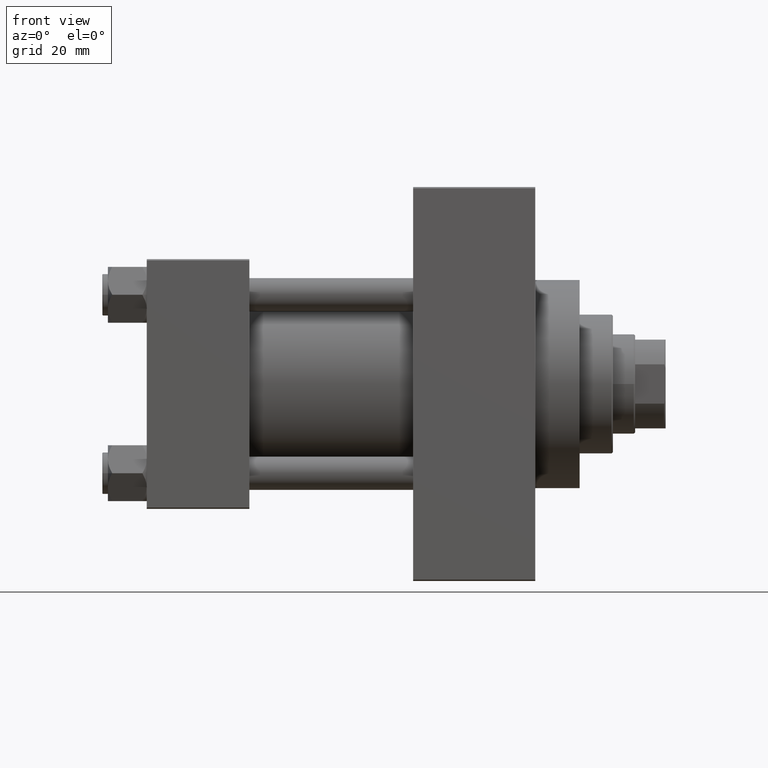
[diagram: clean part render]
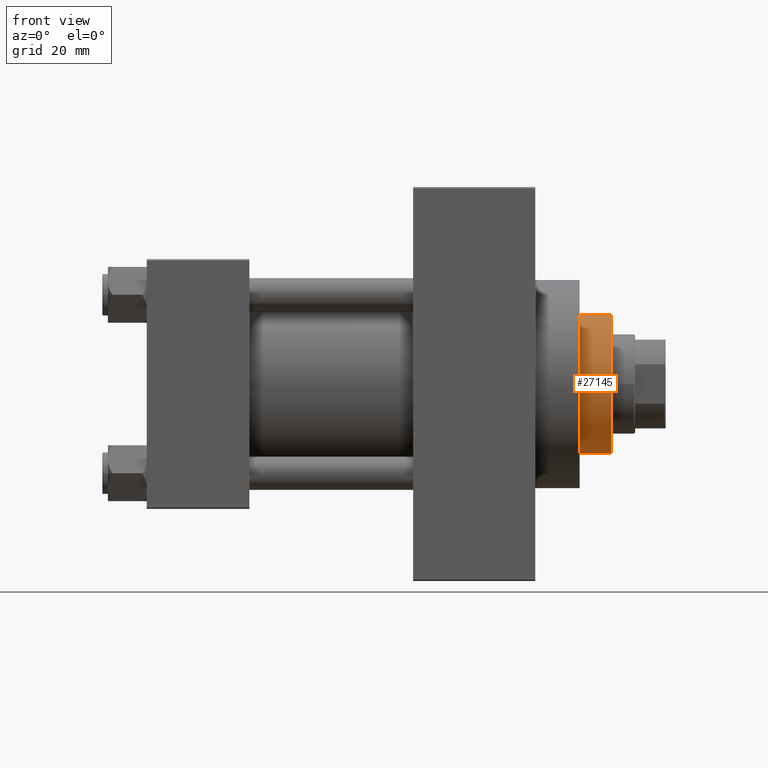
[diagram: same view with one face highlighted and labeled with its STEP entity id]
A machine part, front view. The second image highlights one B-rep face of the part: STEP entity #27145.
In plain terms, the highlighted cylindrical surface (partial cylindrical patch) has radius 25 mm, axis along (-1, 0, 0).
Its self-contained STEP definition (entity closure, byte-faithful):
#1039 = DIRECTION ( 'NONE',  ( -1.000000000000000000, 0.000000000000000000, 0.000000000000000000 ) ) ;
#5521 = CIRCLE ( 'NONE', #30683, 25.00000000000000000 ) ;
#6713 = DIRECTION ( 'NONE',  ( 1.000000000000000000, 0.000000000000000000, 0.000000000000000000 ) ) ;
#6823 = DIRECTION ( 'NONE',  ( -0.000000000000000000, -0.000000000000000000, -1.000000000000000000 ) ) ;
#7481 = DIRECTION ( 'NONE',  ( 0.000000000000000000, 0.000000000000000000, 1.000000000000000000 ) ) ;
#8715 = DIRECTION ( 'NONE',  ( -0.000000000000000000, -0.000000000000000000, -1.000000000000000000 ) ) ;
#10533 = CARTESIAN_POINT ( 'NONE',  ( 0.000000000000000000, 0.000000000000000000, 54.76000000000000512 ) ) ;
#10591 = CARTESIAN_POINT ( 'NONE',  ( 0.000000000000000000, 0.000000000000000000, 43.25999999999999801 ) ) ;
#10877 = LINE ( 'NONE', #25458, #44852 ) ;
#13146 = EDGE_CURVE ( 'NONE', #43958, #45085, #17897, .T. ) ;
#16070 = CYLINDRICAL_SURFACE ( 'NONE', #44925, 25.00000000000000000 ) ;
#16764 = CARTESIAN_POINT ( 'NONE',  ( -25.00000000000000000, 0.000000000000000000, 54.76000000000000512 ) ) ;
#17649 = CARTESIAN_POINT ( 'NONE',  ( -25.00000000000000000, 0.000000000000000000, 43.25999999999999801 ) ) ;
#17897 = CIRCLE ( 'NONE', #33165, 25.00000000000000000 ) ;
#17954 = DIRECTION ( 'NONE',  ( 0.000000000000000000, 0.000000000000000000, -1.000000000000000000 ) ) ;
#21264 = VECTOR ( 'NONE', #8715, 1000.000000000000000 ) ;
#22536 = DIRECTION ( 'NONE',  ( -0.000000000000000000, -0.000000000000000000, -1.000000000000000000 ) ) ;
#23822 = CARTESIAN_POINT ( 'NONE',  ( 25.00000000000000000, 3.061616997868383043E-15, 54.76000000000000512 ) ) ;
#25305 = ORIENTED_EDGE ( 'NONE', *, *, #26222, .T. ) ;
#25458 = CARTESIAN_POINT ( 'NONE',  ( -25.00000000000000000, 0.000000000000000000, 55.26000000000000512 ) ) ;
#25820 = EDGE_LOOP ( 'NONE', ( #38970, #25305, #45462, #27081 ) ) ;
#26149 = CARTESIAN_POINT ( 'NONE',  ( 25.00000000000000000, 3.061616997868383043E-15, 55.26000000000000512 ) ) ;
#26222 = EDGE_CURVE ( 'NONE', #45085, #37195, #26856, .T. ) ;
#26573 = CARTESIAN_POINT ( 'NONE',  ( 0.000000000000000000, 0.000000000000000000, 55.26000000000000512 ) ) ;
#26856 = LINE ( 'NONE', #26149, #21264 ) ;
#27081 = ORIENTED_EDGE ( 'NONE', *, *, #30312, .F. ) ;
#27145 = ADVANCED_FACE ( 'NONE', ( #41623 ), #16070, .T. ) ;
#28525 = DIRECTION ( 'NONE',  ( 1.000000000000000000, 0.000000000000000000, 0.000000000000000000 ) ) ;
#30312 = EDGE_CURVE ( 'NONE', #43958, #45788, #10877, .T. ) ;
#30683 = AXIS2_PLACEMENT_3D ( 'NONE', #10591, #7481, #28525 ) ;
#33165 = AXIS2_PLACEMENT_3D ( 'NONE', #10533, #17954, #6713 ) ;
#37195 = VERTEX_POINT ( 'NONE', #40852 ) ;
#38970 = ORIENTED_EDGE ( 'NONE', *, *, #13146, .T. ) ;
#40852 = CARTESIAN_POINT ( 'NONE',  ( 25.00000000000000000, 3.061616997868383043E-15, 43.25999999999999801 ) ) ;
#41623 = FACE_OUTER_BOUND ( 'NONE', #25820, .T. ) ;
#43958 = VERTEX_POINT ( 'NONE', #16764 ) ;
#44852 = VECTOR ( 'NONE', #6823, 1000.000000000000000 ) ;
#44925 = AXIS2_PLACEMENT_3D ( 'NONE', #26573, #22536, #1039 ) ;
#45085 = VERTEX_POINT ( 'NONE', #23822 ) ;
#45462 = ORIENTED_EDGE ( 'NONE', *, *, #47123, .T. ) ;
#45788 = VERTEX_POINT ( 'NONE', #17649 ) ;
#47123 = EDGE_CURVE ( 'NONE', #37195, #45788, #5521, .T. ) ;